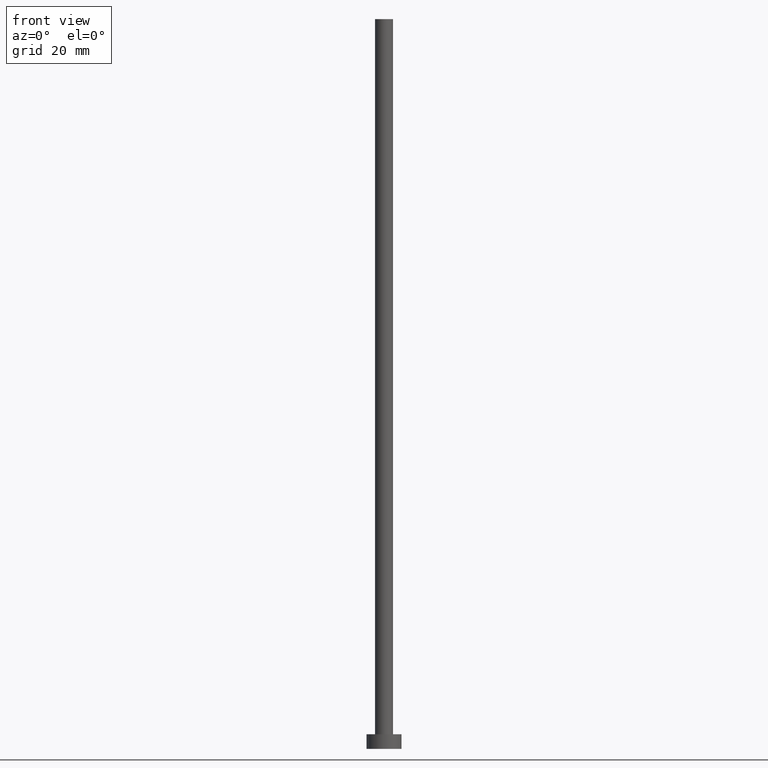
[diagram: clean part render]
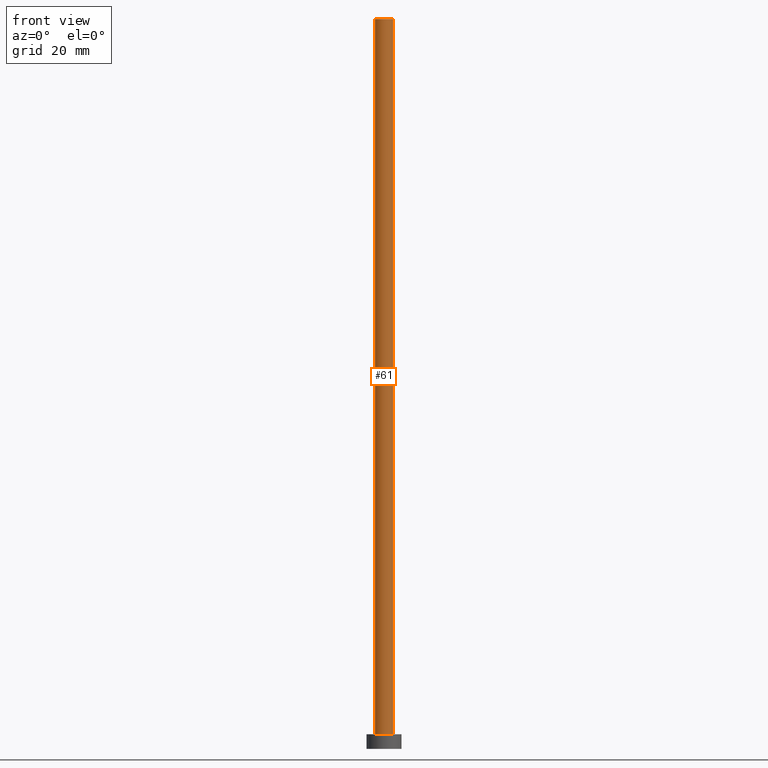
[diagram: same view with one face highlighted and labeled with its STEP entity id]
A machine part, front view. The second image highlights one B-rep face of the part: STEP entity #61.
In plain terms, the highlighted cylindrical surface (edge-blend (fillet) strip) has radius 3.1 mm, axis along (-0, -0, -1).
Its self-contained STEP definition (entity closure, byte-faithful):
#5 = EDGE_CURVE ( 'NONE', #189, #237, #184, .T. ) ;
#16 = LINE ( 'NONE', #197, #220 ) ;
#17 = VECTOR ( 'NONE', #126, 1000.000000000000000 ) ;
#23 = CARTESIAN_POINT ( 'NONE',  ( -3.100000000000000089, 0.000000000000000000, 5.000000000000000000 ) ) ;
#26 = DIRECTION ( 'NONE',  ( -0.000000000000000000, -0.000000000000000000, -1.000000000000000000 ) ) ;
#29 = CARTESIAN_POINT ( 'NONE',  ( 3.100000000000000089, 3.796405077356794918E-16, 250.0000000000000000 ) ) ;
#35 = DIRECTION ( 'NONE',  ( 1.000000000000000000, 0.000000000000000000, 0.000000000000000000 ) ) ;
#42 = ORIENTED_EDGE ( 'NONE', *, *, #146, .F. ) ;
#43 = EDGE_LOOP ( 'NONE', ( #42, #235, #187, #151 ) ) ;
#49 = CARTESIAN_POINT ( 'NONE',  ( -3.100000000000000089, 0.000000000000000000, 250.0000000000000000 ) ) ;
#51 = EDGE_CURVE ( 'NONE', #99, #189, #164, .T. ) ;
#52 = DIRECTION ( 'NONE',  ( 1.000000000000000000, 0.000000000000000000, 0.000000000000000000 ) ) ;
#61 = ADVANCED_FACE ( 'NONE', ( #249 ), #224, .T. ) ;
#72 = CIRCLE ( 'NONE', #185, 3.100000000000000089 ) ;
#77 = DIRECTION ( 'NONE',  ( 0.000000000000000000, 0.000000000000000000, 1.000000000000000000 ) ) ;
#78 = DIRECTION ( 'NONE',  ( -1.000000000000000000, 0.000000000000000000, 0.000000000000000000 ) ) ;
#93 = CARTESIAN_POINT ( 'NONE',  ( 0.000000000000000000, 0.000000000000000000, 250.0000000000000000 ) ) ;
#99 = VERTEX_POINT ( 'NONE', #191 ) ;
#106 = CARTESIAN_POINT ( 'NONE',  ( 3.100000000000000089, 3.796405077356794918E-16, 5.000000000000000000 ) ) ;
#110 = EDGE_CURVE ( 'NONE', #99, #198, #72, .T. ) ;
#126 = DIRECTION ( 'NONE',  ( -0.000000000000000000, -0.000000000000000000, -1.000000000000000000 ) ) ;
#127 = DIRECTION ( 'NONE',  ( -0.000000000000000000, -0.000000000000000000, -1.000000000000000000 ) ) ;
#146 = EDGE_CURVE ( 'NONE', #198, #237, #16, .T. ) ;
#149 = AXIS2_PLACEMENT_3D ( 'NONE', #207, #127, #78 ) ;
#151 = ORIENTED_EDGE ( 'NONE', *, *, #5, .T. ) ;
#164 = LINE ( 'NONE', #49, #17 ) ;
#184 = CIRCLE ( 'NONE', #214, 3.100000000000000089 ) ;
#185 = AXIS2_PLACEMENT_3D ( 'NONE', #93, #209, #35 ) ;
#187 = ORIENTED_EDGE ( 'NONE', *, *, #51, .T. ) ;
#189 = VERTEX_POINT ( 'NONE', #23 ) ;
#191 = CARTESIAN_POINT ( 'NONE',  ( -3.100000000000000089, 0.000000000000000000, 250.0000000000000000 ) ) ;
#197 = CARTESIAN_POINT ( 'NONE',  ( 3.100000000000000089, 3.796405077356794918E-16, 250.0000000000000000 ) ) ;
#198 = VERTEX_POINT ( 'NONE', #29 ) ;
#207 = CARTESIAN_POINT ( 'NONE',  ( 0.000000000000000000, 0.000000000000000000, 250.0000000000000000 ) ) ;
#209 = DIRECTION ( 'NONE',  ( 0.000000000000000000, 0.000000000000000000, 1.000000000000000000 ) ) ;
#214 = AXIS2_PLACEMENT_3D ( 'NONE', #225, #77, #52 ) ;
#220 = VECTOR ( 'NONE', #26, 1000.000000000000000 ) ;
#224 = CYLINDRICAL_SURFACE ( 'NONE', #149, 3.100000000000000089 ) ;
#225 = CARTESIAN_POINT ( 'NONE',  ( 0.000000000000000000, 0.000000000000000000, 5.000000000000000000 ) ) ;
#235 = ORIENTED_EDGE ( 'NONE', *, *, #110, .F. ) ;
#237 = VERTEX_POINT ( 'NONE', #106 ) ;
#249 = FACE_OUTER_BOUND ( 'NONE', #43, .T. ) ;